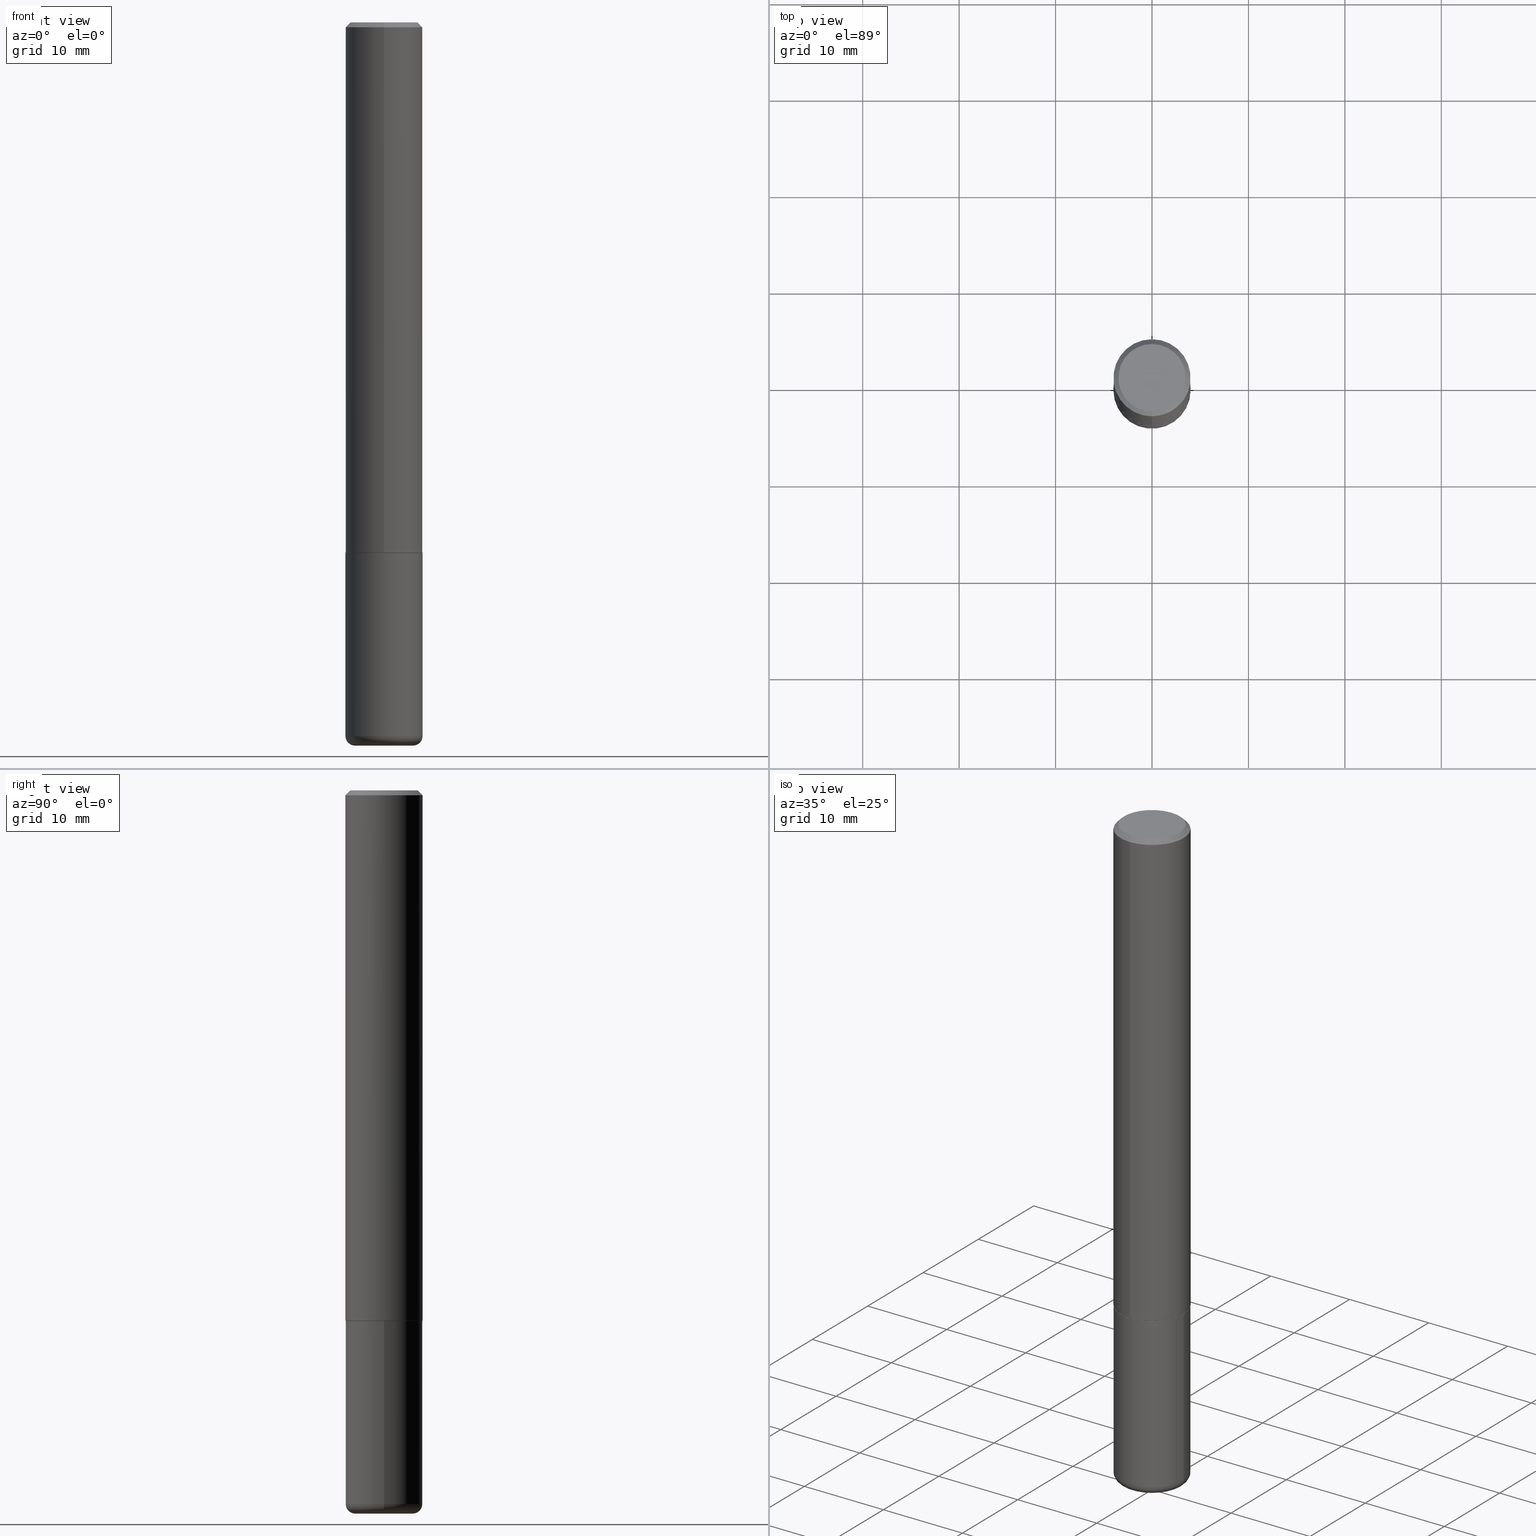
[diagram: canonical four-view strip — front | top / right | iso, engineering-drawing reading convention]
A machine part, canonical four-view strip (front | top / right | iso — engineering-drawing reading convention). The complete STEP part file that produces these views, byte-faithful:
ISO-10303-21;
HEADER;
FILE_DESCRIPTION (( 'STEP AP203' ),
    '1' );
FILE_NAME ('74356.STEP',
    '2024-03-06T15:08:46',
    ( '' ),
    ( '' ),
    'SwSTEP 2.0',
    'SolidWorks 2023',
    '' );
FILE_SCHEMA (( 'CONFIG_CONTROL_DESIGN' ));
ENDSEC;

DATA;
#1 = ADVANCED_BREP_SHAPE_REPRESENTATION ( '74356', ( #213, #67, #330 ), #46 ) ;
#2 = AXIS2_PLACEMENT_3D ( 'NONE', #162, #233, #283 ) ;
#3 = ADVANCED_FACE ( 'NONE', ( #200 ), #164, .T. ) ;
#4 = PERSON_AND_ORGANIZATION ( #378, #376 ) ;
#5 = CYLINDRICAL_SURFACE ( 'NONE', #399, 0.1575000000000001676 ) ;
#6 = APPROVAL ( #40, 'UNSPECIFIED' ) ;
#7 = ORIENTED_EDGE ( 'NONE', *, *, #335, .F. ) ;
#8 = LENGTH_MEASURE_WITH_UNIT ( LENGTH_MEASURE( 0.02539999999999999897 ), #332 );
#9 = PERSON_AND_ORGANIZATION_ROLE ( 'creator' ) ;
#10 = DIRECTION ( 'NONE',  ( 1.000000000000000000, -6.982962677686268288E-15, 0.000000000000000000 ) ) ;
#11 = EDGE_LOOP ( 'NONE', ( #315, #173, #359, #42 ) ) ;
#12 = PERSON_AND_ORGANIZATION ( #378, #376 ) ;
#13 = DIRECTION ( 'NONE',  ( -2.445468806185136597E-29, 3.491481338843145583E-15, 1.000000000000000000 ) ) ;
#14 = VERTEX_POINT ( 'NONE', #268 ) ;
#15 = AXIS2_PLACEMENT_3D ( 'NONE', #205, #235, #193 ) ;
#16 = DIRECTION ( 'NONE',  ( 1.000000000000000000, -6.982962677686265922E-15, 4.876176775795935232E-29 ) ) ;
#17 = ORIENTED_EDGE ( 'NONE', *, *, #243, .F. ) ;
#18 = FACE_OUTER_BOUND ( 'NONE', #150, .T. ) ;
#19 = ORIENTED_EDGE ( 'NONE', *, *, #216, .T. ) ;
#20 = EDGE_CURVE ( 'NONE', #115, #153, #245, .T. ) ;
#21 = CC_DESIGN_PERSON_AND_ORGANIZATION_ASSIGNMENT ( #171, #390, ( #62 ) ) ;
#22 = LOCAL_TIME ( 10, 8, 46.00000000000000000, #87 ) ;
#23 = AXIS2_PLACEMENT_3D ( 'NONE', #312, #380, #103 ) ;
#24 = ORIENTED_EDGE ( 'NONE', *, *, #96, .T. ) ;
#25 = DIRECTION ( 'NONE',  ( -2.444928043019069524E-29, 3.492255742475281487E-15, 1.000000000000000000 ) ) ;
#26 = AXIS2_PLACEMENT_3D ( 'NONE', #258, #397, #368 ) ;
#27 = EDGE_CURVE ( 'NONE', #293, #187, #278, .T. ) ;
#28 = CALENDAR_DATE ( 2024, 6, 3 ) ;
#29 = CARTESIAN_POINT ( 'NONE',  ( -0.1575000000000000011, 1.119104808822157801E-15, -7.747322767151475583E-30 ) ) ;
#30 = CYLINDRICAL_SURFACE ( 'NONE', #60, 0.1575000000000001676 ) ;
#31 =( CONVERSION_BASED_UNIT ( 'INCH', #8 ) LENGTH_UNIT ( ) NAMED_UNIT ( #219 ) );
#32 = DATE_AND_TIME ( #353, #372 ) ;
#33 = CARTESIAN_POINT ( 'NONE',  ( -1.099816621735536007E-15, -0.1575000000000078559, -2.164399999999999213 ) ) ;
#34 = ADVANCED_FACE ( 'NONE', ( #366 ), #79, .F. ) ;
#35 = ORIENTED_EDGE ( 'NONE', *, *, #90, .F. ) ;
#36 = LINE ( 'NONE', #367, #220 ) ;
#37 = FACE_OUTER_BOUND ( 'NONE', #120, .T. ) ;
#38 = EDGE_LOOP ( 'NONE', ( #48, #287, #57, #281 ) ) ;
#39 = PLANE ( 'NONE',  #83 ) ;
#40 = APPROVAL_STATUS ( 'not_yet_approved' ) ;
#41 = FACE_OUTER_BOUND ( 'NONE', #139, .T. ) ;
#42 = ORIENTED_EDGE ( 'NONE', *, *, #226, .F. ) ;
#43 = UNCERTAINTY_MEASURE_WITH_UNIT (LENGTH_MEASURE( 1.000000000000000082E-05 ), #31, 'distance_accuracy_value', 'NONE');
#44 = LINE ( 'NONE', #407, #244 ) ;
#45 = CARTESIAN_POINT ( 'NONE',  ( -1.011923454671300053E-15, -0.1374999999999997891, 6.809117321244884418E-16 ) ) ;
#46 =( GEOMETRIC_REPRESENTATION_CONTEXT ( 3 ) GLOBAL_UNCERTAINTY_ASSIGNED_CONTEXT ( ( #43 ) ) GLOBAL_UNIT_ASSIGNED_CONTEXT ( ( #31, #228, #136 ) ) REPRESENTATION_CONTEXT ( 'NONE', 'WORKASPACE' ) );
#47 = CARTESIAN_POINT ( 'NONE',  ( -0.1180999999999999966, -9.332930761652941905E-15, -2.913399999999999768 ) ) ;
#48 = ORIENTED_EDGE ( 'NONE', *, *, #114, .T. ) ;
#49 = APPLICATION_PROTOCOL_DEFINITION ( 'international standard', 'config_control_design', 1994, #227 ) ;
#50 = ADVANCED_FACE ( 'NONE', ( #51 ), #183, .F. ) ;
#51 = FACE_OUTER_BOUND ( 'NONE', #379, .T. ) ;
#52 = CC_DESIGN_DATE_AND_TIME_ASSIGNMENT ( #70, #282, ( #208 ) ) ;
#53 = LINE ( 'NONE', #91, #160 ) ;
#54 = ADVANCED_FACE ( 'NONE', ( #195 ), #5, .T. ) ;
#55 = AXIS2_PLACEMENT_3D ( 'NONE', #140, #260, #327 ) ;
#56 = CIRCLE ( 'NONE', #176, 0.1575000000000000011 ) ;
#57 = ORIENTED_EDGE ( 'NONE', *, *, #146, .F. ) ;
#58 = DIRECTION ( 'NONE',  ( 2.444928043019069804E-29, -3.492255742475281487E-15, -1.000000000000000000 ) ) ;
#59 = VERTEX_POINT ( 'NONE', #105 ) ;
#60 = AXIS2_PLACEMENT_3D ( 'NONE', #110, #333, #408 ) ;
#61 = CARTESIAN_POINT ( 'NONE',  ( 4.889856086038147210E-31, -6.984511484950574659E-17, -0.02000000000000003511 ) ) ;
#62 = PRODUCT_DEFINITION_FORMATION_WITH_SPECIFIED_SOURCE ( 'ANY', '', #412, .NOT_KNOWN. ) ;
#63 = ORIENTED_EDGE ( 'NONE', *, *, #89, .T. ) ;
#64 = LINE ( 'NONE', #223, #85 ) ;
#65 = PERSON_AND_ORGANIZATION_ROLE ( 'classification_officer' ) ;
#66 = CARTESIAN_POINT ( 'NONE',  ( 5.294247184353492784E-29, -7.562130584755974132E-15, -2.165399999999999991 ) ) ;
#67 = MANIFOLD_SOLID_BREP ( 'Body-Move/Copy2[2]', #331 ) ;
#68 = VERTEX_POINT ( 'NONE', #225 ) ;
#69 = CARTESIAN_POINT ( 'NONE',  ( 7.124628819939776708E-29, -1.017208173258561931E-14, -2.913399999999999768 ) ) ;
#70 = DATE_AND_TIME ( #28, #128 ) ;
#71 = DIRECTION ( 'NONE',  ( 2.444928043019069243E-29, -3.492255742475281487E-15, -1.000000000000000000 ) ) ;
#72 = EDGE_LOOP ( 'NONE', ( #355, #143, #239, #416 ) ) ;
#73 = DIRECTION ( 'NONE',  ( -2.444928043019069804E-29, 3.492255742475281487E-15, 1.000000000000000000 ) ) ;
#74 = AXIS2_PLACEMENT_3D ( 'NONE', #172, #165, #81 ) ;
#75 = DIRECTION ( 'NONE',  ( -2.444928043019069804E-29, 3.492255742475281487E-15, 1.000000000000000000 ) ) ;
#76 = DIRECTION ( 'NONE',  ( -2.444928043019069804E-29, 3.492255742475281487E-15, 1.000000000000000000 ) ) ;
#77 = CALENDAR_DATE ( 2024, 6, 3 ) ;
#78 = CARTESIAN_POINT ( 'NONE',  ( -1.092833659057847823E-15, -0.1565000000000075497, -2.165399999999999103 ) ) ;
#79 = PLANE ( 'NONE',  #210 ) ;
#80 = LINE ( 'NONE', #267, #129 ) ;
#81 = DIRECTION ( 'NONE',  ( 1.000000000000000000, -6.982962677686271444E-15, 4.883557194083114583E-29 ) ) ;
#82 = ORIENTED_EDGE ( 'NONE', *, *, #226, .T. ) ;
#83 = AXIS2_PLACEMENT_3D ( 'NONE', #396, #288, #144 ) ;
#84 = VERTEX_POINT ( 'NONE', #145 ) ;
#85 = VECTOR ( 'NONE', #191, 39.37007874015748143 ) ;
#86 = EDGE_CURVE ( 'NONE', #68, #326, #241, .T. ) ;
#87 = COORDINATED_UNIVERSAL_TIME_OFFSET ( 5, 0, .BEHIND. ) ;
#88 = DIRECTION ( 'NONE',  ( 2.438088387897960049E-29, -3.491481338843145188E-15, -1.000000000000000000 ) ) ;
#89 = EDGE_CURVE ( 'NONE', #153, #326, #217, .T. ) ;
#90 = EDGE_CURVE ( 'NONE', #14, #84, #56, .T. ) ;
#91 = CARTESIAN_POINT ( 'NONE',  ( -1.099816621735587875E-15, -0.1575000000000001676, 5.500302794398574170E-16 ) ) ;
#92 = CIRCLE ( 'NONE', #15, 0.1575000000000000289 ) ;
#93 = ADVANCED_FACE ( 'NONE', ( #109 ), #142, .T. ) ;
#94 = CIRCLE ( 'NONE', #26, 0.1565000000000000002 ) ;
#95 = DIRECTION ( 'NONE',  ( -2.444928043019069804E-29, 3.492255742475281487E-15, 1.000000000000000000 ) ) ;
#96 = EDGE_CURVE ( 'NONE', #153, #14, #391, .T. ) ;
#97 = ORIENTED_EDGE ( 'NONE', *, *, #27, .T. ) ;
#98 = CC_DESIGN_PERSON_AND_ORGANIZATION_ASSIGNMENT ( #12, #336, ( #412 ) ) ;
#99 = CIRCLE ( 'NONE', #294, 0.1575000000000000289 ) ;
#100 = CARTESIAN_POINT ( 'NONE',  ( 1.029986994958723788E-15, 0.1374999999999997891, -2.794585970562124091E-16 ) ) ;
#101 = APPROVAL_DATE_TIME ( #317, #392 ) ;
#102 = CIRCLE ( 'NONE', #306, 0.1575000000000003064 ) ;
#103 = DIRECTION ( 'NONE',  ( 1.000000000000000000, -6.982962677686273021E-15, 0.000000000000000000 ) ) ;
#104 = CARTESIAN_POINT ( 'NONE',  ( -0.1575000000000000289, -9.052976923763463288E-15, -2.913399999999999768 ) ) ;
#105 = CARTESIAN_POINT ( 'NONE',  ( 1.099816621735587480E-15, 0.1574999999999999456, -0.02000000000000058328 ) ) ;
#106 = ORIENTED_EDGE ( 'NONE', *, *, #96, .F. ) ;
#107 = DIRECTION ( 'NONE',  ( -4.851104656540962697E-15, -0.7071067811865497932, -0.7071067811865451302 ) ) ;
#108 = COORDINATED_UNIVERSAL_TIME_OFFSET ( 5, 0, .BEHIND. ) ;
#109 = FACE_OUTER_BOUND ( 'NONE', #170, .T. ) ;
#110 = CARTESIAN_POINT ( 'NONE',  ( 0.000000000000000000, 0.000000000000000000, 0.000000000000000000 ) ) ;
#111 = ORIENTED_EDGE ( 'NONE', *, *, #277, .T. ) ;
#112 = FACE_OUTER_BOUND ( 'NONE', #371, .T. ) ;
#113 = DIRECTION ( 'NONE',  ( -6.982962677686265922E-15, -1.000000000000000000, 3.492255742475281487E-15 ) ) ;
#114 = EDGE_CURVE ( 'NONE', #212, #259, #94, .T. ) ;
#115 = VERTEX_POINT ( 'NONE', #289 ) ;
#116 = FACE_OUTER_BOUND ( 'NONE', #190, .T. ) ;
#117 = DIRECTION ( 'NONE',  ( 1.000000000000000000, -6.982962677686261977E-15, 0.000000000000000000 ) ) ;
#118 = ORIENTED_EDGE ( 'NONE', *, *, #360, .F. ) ;
#119 = APPROVAL ( #357, 'UNSPECIFIED' ) ;
#120 = EDGE_LOOP ( 'NONE', ( #166, #404, #82, #266 ) ) ;
#121 = TOROIDAL_SURFACE ( 'NONE', #74, 0.1180999999999999966, 0.03940000000000005997 ) ;
#122 = APPROVAL_PERSON_ORGANIZATION ( #133, #6, #324 ) ;
#123 = AXIS2_PLACEMENT_3D ( 'NONE', #328, #299, #203 ) ;
#124 = EDGE_CURVE ( 'NONE', #212, #147, #388, .T. ) ;
#125 = DIRECTION ( 'NONE',  ( 1.000000000000000000, -6.982962677686261977E-15, 0.000000000000000000 ) ) ;
#126 = PRODUCT_DEFINITION ( 'UNKNOWN', '', #62, #395 ) ;
#127 = ORIENTED_EDGE ( 'NONE', *, *, #243, .T. ) ;
#128 = LOCAL_TIME ( 10, 8, 46.00000000000000000, #417 ) ;
#129 = VECTOR ( 'NONE', #238, 39.37007874015748143 ) ;
#130 = CARTESIAN_POINT ( 'NONE',  ( 1.119104808822185805E-15, 0.1574999999999927569, -2.164400000000000102 ) ) ;
#131 = CARTESIAN_POINT ( 'NONE',  ( 1.115552095143411136E-15, 0.1564999999999924507, -2.165400000000000436 ) ) ;
#132 = EDGE_LOOP ( 'NONE', ( #389, #309, #290, #111 ) ) ;
#133 = PERSON_AND_ORGANIZATION ( #378, #376 ) ;
#134 = TOROIDAL_SURFACE ( 'NONE', #174, 0.1180999999999999966, 0.03940000000000005997 ) ;
#135 = FACE_OUTER_BOUND ( 'NONE', #38, .T. ) ;
#136 =( NAMED_UNIT ( * ) SI_UNIT ( $, .STERADIAN. ) SOLID_ANGLE_UNIT ( ) );
#137 = CALENDAR_DATE ( 2024, 6, 3 ) ;
#138 = CARTESIAN_POINT ( 'NONE',  ( 0.000000000000000000, 0.000000000000000000, 0.000000000000000000 ) ) ;
#139 = EDGE_LOOP ( 'NONE', ( #127, #284, #302, #409 ) ) ;
#140 = CARTESIAN_POINT ( 'NONE',  ( 5.294247184353492784E-29, -7.562130584755974132E-15, -2.165399999999999991 ) ) ;
#141 = DATE_TIME_ROLE ( 'creation_date' ) ;
#142 = CYLINDRICAL_SURFACE ( 'NONE', #270, 0.1575000000000000011 ) ;
#143 = ORIENTED_EDGE ( 'NONE', *, *, #413, .T. ) ;
#144 = DIRECTION ( 'NONE',  ( -1.000000000000000000, 6.982962677686265922E-15, -4.876176775795935793E-29 ) ) ;
#145 = CARTESIAN_POINT ( 'NONE',  ( 0.1575000000000000011, -8.660270312866534114E-15, -2.165399999999999991 ) ) ;
#146 = EDGE_CURVE ( 'NONE', #147, #248, #297, .T. ) ;
#147 = VERTEX_POINT ( 'NONE', #33 ) ;
#148 = CARTESIAN_POINT ( 'NONE',  ( -1.080528434649015779E-15, -0.1575000000000000844, -0.01999999999999948347 ) ) ;
#149 = DIRECTION ( 'NONE',  ( -2.445468806185136597E-29, 3.491481338843145583E-15, 1.000000000000000000 ) ) ;
#150 = EDGE_LOOP ( 'NONE', ( #17, #398 ) ) ;
#151 = CARTESIAN_POINT ( 'NONE',  ( 7.124628819939776708E-29, -1.017208173258561931E-14, -2.913399999999999768 ) ) ;
#152 = PRODUCT_RELATED_PRODUCT_CATEGORY ( 'detail', '', ( #412 ) ) ;
#153 = VERTEX_POINT ( 'NONE', #104 ) ;
#154 = CC_DESIGN_SECURITY_CLASSIFICATION ( #208, ( #62 ) ) ;
#155 = CONICAL_SURFACE ( 'NONE', #184, 0.1565000000000000002, 0.7853981633975678500 ) ;
#156 = CC_DESIGN_DATE_AND_TIME_ASSIGNMENT ( #383, #141, ( #126 ) ) ;
#157 = EDGE_CURVE ( 'NONE', #115, #68, #361, .T. ) ;
#158 = ADVANCED_FACE ( 'NONE', ( #41 ), #121, .T. ) ;
#159 = CC_DESIGN_APPROVAL ( #6, ( #208 ) ) ;
#160 = VECTOR ( 'NONE', #25, 39.37007874015748143 ) ;
#161 = CARTESIAN_POINT ( 'NONE',  ( 5.291802256310474180E-29, -7.558638329013498276E-15, -2.164399999999999658 ) ) ;
#162 = CARTESIAN_POINT ( 'NONE',  ( 5.291802256310474180E-29, -7.558638329013498276E-15, -2.164399999999999658 ) ) ;
#163 = ORIENTED_EDGE ( 'NONE', *, *, #89, .F. ) ;
#164 = CONICAL_SURFACE ( 'NONE', #410, 0.1575000000000000289, 0.7853981633974481680 ) ;
#165 = DIRECTION ( 'NONE',  ( -2.445468806185136597E-29, 3.491481338843145583E-15, 1.000000000000000000 ) ) ;
#166 = ORIENTED_EDGE ( 'NONE', *, *, #303, .F. ) ;
#167 = ADVANCED_FACE ( 'NONE', ( #262 ), #405, .T. ) ;
#168 = DIRECTION ( 'NONE',  ( -6.982962677686265133E-15, -1.000000000000000000, 3.492255742475281487E-15 ) ) ;
#169 = ADVANCED_FACE ( 'NONE', ( #135 ), #155, .T. ) ;
#170 = EDGE_LOOP ( 'NONE', ( #106, #63, #406, #35 ) ) ;
#171 = PERSON_AND_ORGANIZATION ( #378, #376 ) ;
#172 = CARTESIAN_POINT ( 'NONE',  ( 7.124628819939776708E-29, -1.017208173258561931E-14, -2.913399999999999768 ) ) ;
#173 = ORIENTED_EDGE ( 'NONE', *, *, #303, .T. ) ;
#174 = AXIS2_PLACEMENT_3D ( 'NONE', #151, #401, #316 ) ;
#175 = DIRECTION ( 'NONE',  ( 5.024295867788662713E-15, 0.7071067811866345032, 0.7071067811864605313 ) ) ;
#176 = AXIS2_PLACEMENT_3D ( 'NONE', #318, #177, #10 ) ;
#177 = DIRECTION ( 'NONE',  ( -2.445468806185136597E-29, 3.491481338843145583E-15, 1.000000000000000000 ) ) ;
#178 = CIRCLE ( 'NONE', #308, 0.1565000000000000002 ) ;
#179 = EDGE_LOOP ( 'NONE', ( #181, #7 ) ) ;
#180 = CARTESIAN_POINT ( 'NONE',  ( 0.1575000000000000289, -1.127189835432120758E-14, -2.913399999999999768 ) ) ;
#181 = ORIENTED_EDGE ( 'NONE', *, *, #114, .F. ) ;
#182 = PERSON_AND_ORGANIZATION ( #378, #376 ) ;
#183 = PLANE ( 'NONE',  #305 ) ;
#184 = AXIS2_PLACEMENT_3D ( 'NONE', #66, #73, #286 ) ;
#185 = CIRCLE ( 'NONE', #23, 0.1180999999999999966 ) ;
#186 = EDGE_CURVE ( 'NONE', #293, #59, #402, .T. ) ;
#187 = VERTEX_POINT ( 'NONE', #45 ) ;
#188 = ORIENTED_EDGE ( 'NONE', *, *, #197, .F. ) ;
#189 = AXIS2_PLACEMENT_3D ( 'NONE', #344, #58, #311 ) ;
#190 = EDGE_LOOP ( 'NONE', ( #369, #207, #196, #163 ) ) ;
#191 = DIRECTION ( 'NONE',  ( -2.444928043019069524E-29, 3.492255742475281487E-15, 1.000000000000000000 ) ) ;
#192 = DIRECTION ( 'NONE',  ( 6.982962677686265922E-15, 1.000000000000000000, -3.492255742475281487E-15 ) ) ;
#193 = DIRECTION ( 'NONE',  ( -6.982962677686264344E-15, -1.000000000000000000, 3.496114991891764787E-15 ) ) ;
#194 = PERSON_AND_ORGANIZATION ( #378, #376 ) ;
#195 = FACE_OUTER_BOUND ( 'NONE', #11, .T. ) ;
#196 = ORIENTED_EDGE ( 'NONE', *, *, #86, .T. ) ;
#197 = EDGE_CURVE ( 'NONE', #84, #14, #261, .T. ) ;
#198 = ADVANCED_FACE ( 'NONE', ( #37 ), #30, .T. ) ;
#199 = DIRECTION ( 'NONE',  ( -2.445468806185136597E-29, 3.491481338843145583E-15, 1.000000000000000000 ) ) ;
#200 = FACE_OUTER_BOUND ( 'NONE', #72, .T. ) ;
#201 = DIRECTION ( 'NONE',  ( 1.000000000000000000, 0.000000000000000000, 0.000000000000000000 ) ) ;
#202 = PERSON_AND_ORGANIZATION ( #378, #376 ) ;
#203 = DIRECTION ( 'NONE',  ( 1.000000000000000000, -6.982962677686267499E-15, 0.000000000000000000 ) ) ;
#204 = ORIENTED_EDGE ( 'NONE', *, *, #272, .F. ) ;
#205 = CARTESIAN_POINT ( 'NONE',  ( 4.889856086038147210E-31, -6.984511484950574659E-17, -0.02000000000000003511 ) ) ;
#206 = DIRECTION ( 'NONE',  ( 4.937700262164546464E-15, 0.7071067811865447972, -0.7071067811865500152 ) ) ;
#207 = ORIENTED_EDGE ( 'NONE', *, *, #157, .T. ) ;
#208 = SECURITY_CLASSIFICATION ( '', '', #350 ) ;
#209 = DIRECTION ( 'NONE',  ( -2.444928043019069804E-29, 3.492255742475281487E-15, 1.000000000000000000 ) ) ;
#210 = AXIS2_PLACEMENT_3D ( 'NONE', #337, #88, #215 ) ;
#211 = AXIS2_PLACEMENT_3D ( 'NONE', #351, #199, #321 ) ;
#212 = VERTEX_POINT ( 'NONE', #365 ) ;
#213 = MANIFOLD_SOLID_BREP ( 'Body-Move/Copy2[1]', #375 ) ;
#214 = APPROVAL_ROLE ( '' ) ;
#215 = DIRECTION ( 'NONE',  ( -1.000000000000000000, 6.982962677686265922E-15, -4.876176775795935793E-29 ) ) ;
#216 = EDGE_CURVE ( 'NONE', #187, #293, #273, .T. ) ;
#217 = CIRCLE ( 'NONE', #347, 0.1575000000000000011 ) ;
#218 = FACE_OUTER_BOUND ( 'NONE', #132, .T. ) ;
#219 = DIMENSIONAL_EXPONENTS ( 1.000000000000000000, 0.000000000000000000, 0.000000000000000000, 0.000000000000000000, 0.000000000000000000, 0.000000000000000000, 0.000000000000000000 ) ;
#220 = VECTOR ( 'NONE', #107, 39.37007874015748854 ) ;
#221 = ORIENTED_EDGE ( 'NONE', *, *, #352, .F. ) ;
#222 = LOCAL_TIME ( 10, 8, 46.00000000000000000, #108 ) ;
#223 = CARTESIAN_POINT ( 'NONE',  ( 1.119104808822158787E-15, 0.1575000000000001676, -5.500302794398574170E-16 ) ) ;
#224 = PERSON_AND_ORGANIZATION ( #378, #376 ) ;
#225 = CARTESIAN_POINT ( 'NONE',  ( 0.1180999999999999966, -1.113433398957078679E-14, -2.952799999999999869 ) ) ;
#226 = EDGE_CURVE ( 'NONE', #147, #385, #53, .T. ) ;
#227 = APPLICATION_CONTEXT ( 'configuration controlled 3d designs of mechanical parts and assemblies' ) ;
#228 =( NAMED_UNIT ( * ) PLANE_ANGLE_UNIT ( ) SI_UNIT ( $, .RADIAN. ) );
#229 = DIRECTION ( 'NONE',  ( -2.445468806185136877E-29, 3.491481338843145188E-15, 1.000000000000000000 ) ) ;
#230 = CARTESIAN_POINT ( 'NONE',  ( -4.907620139431751550E-45, 7.009885081384458012E-31, 2.007265675341379917E-16 ) ) ;
#231 = CARTESIAN_POINT ( 'NONE',  ( 0.000000000000000000, 0.000000000000000000, 0.000000000000000000 ) ) ;
#232 = AXIS2_PLACEMENT_3D ( 'NONE', #325, #418, #265 ) ;
#233 = DIRECTION ( 'NONE',  ( -2.444928043019069804E-29, 3.492255742475281487E-15, 1.000000000000000000 ) ) ;
#234 = CARTESIAN_POINT ( 'NONE',  ( 4.889856086038147210E-31, -6.984511484950574659E-17, -0.02000000000000003511 ) ) ;
#235 = DIRECTION ( 'NONE',  ( -2.444928043019069804E-29, 3.492255742475281487E-15, 1.000000000000000000 ) ) ;
#236 = DIRECTION ( 'NONE',  ( -2.445468806185136597E-29, 3.491481338843145583E-15, 1.000000000000000000 ) ) ;
#237 = ORIENTED_EDGE ( 'NONE', *, *, #269, .T. ) ;
#238 = DIRECTION ( 'NONE',  ( -2.445468806185136877E-29, 3.491481338843145188E-15, 1.000000000000000000 ) ) ;
#239 = ORIENTED_EDGE ( 'NONE', *, *, #394, .T. ) ;
#240 = PLANE ( 'NONE',  #55 ) ;
#241 = CIRCLE ( 'NONE', #123, 0.03940000000000005997 ) ;
#242 = ORIENTED_EDGE ( 'NONE', *, *, #335, .T. ) ;
#243 = EDGE_CURVE ( 'NONE', #68, #115, #185, .T. ) ;
#244 = VECTOR ( 'NONE', #175, 39.37007874015748143 ) ;
#245 = CIRCLE ( 'NONE', #384, 0.03940000000000005997 ) ;
#246 = CC_DESIGN_APPROVAL ( #392, ( #126 ) ) ;
#247 = DIRECTION ( 'NONE',  ( -2.444928043019069804E-29, 3.492255742475281487E-15, 1.000000000000000000 ) ) ;
#248 = VERTEX_POINT ( 'NONE', #130 ) ;
#249 = AXIS2_PLACEMENT_3D ( 'NONE', #69, #276, #125 ) ;
#250 = COORDINATED_UNIVERSAL_TIME_OFFSET ( 5, 0, .BEHIND. ) ;
#251 = CARTESIAN_POINT ( 'NONE',  ( 1.099816621735587480E-15, 0.1574999999999999456, -0.02000000000000058328 ) ) ;
#252 = CC_DESIGN_PERSON_AND_ORGANIZATION_ASSIGNMENT ( #4, #9, ( #126 ) ) ;
#253 = APPROVAL_DATE_TIME ( #363, #119 ) ;
#254 = CARTESIAN_POINT ( 'NONE',  ( 7.124628819939776708E-29, -1.017208173258561931E-14, -2.913399999999999768 ) ) ;
#255 = DIRECTION ( 'NONE',  ( 6.982962677686264344E-15, 1.000000000000000000, -3.496114991891764787E-15 ) ) ;
#256 = DIRECTION ( 'NONE',  ( -6.982962677686265922E-15, -1.000000000000000000, 3.491179544618866730E-15 ) ) ;
#257 = APPROVAL_ROLE ( '' ) ;
#258 = CARTESIAN_POINT ( 'NONE',  ( 5.294247184353492784E-29, -7.562130584755974132E-15, -2.165399999999999991 ) ) ;
#259 = VERTEX_POINT ( 'NONE', #131 ) ;
#260 = DIRECTION ( 'NONE',  ( -2.444928043019069243E-29, 3.492255742475281487E-15, 1.000000000000000000 ) ) ;
#261 = CIRCLE ( 'NONE', #211, 0.1575000000000000011 ) ;
#262 = FACE_OUTER_BOUND ( 'NONE', #264, .T. ) ;
#263 = DIRECTION ( 'NONE',  ( -2.444928043019069804E-29, 3.492255742475281487E-15, 1.000000000000000000 ) ) ;
#264 = EDGE_LOOP ( 'NONE', ( #237, #24, #188, #221 ) ) ;
#265 = DIRECTION ( 'NONE',  ( 1.000000000000000000, -6.982962677686273021E-15, 0.000000000000000000 ) ) ;
#266 = ORIENTED_EDGE ( 'NONE', *, *, #277, .F. ) ;
#267 = CARTESIAN_POINT ( 'NONE',  ( 0.1575000000000000011, -1.099816621735586889E-15, 7.679978421878598033E-30 ) ) ;
#268 = CARTESIAN_POINT ( 'NONE',  ( -0.1575000000000000011, -7.747162903036124976E-15, -2.165399999999999991 ) ) ;
#269 = EDGE_CURVE ( 'NONE', #326, #153, #279, .T. ) ;
#270 = AXIS2_PLACEMENT_3D ( 'NONE', #138, #236, #16 ) ;
#271 = CC_DESIGN_PERSON_AND_ORGANIZATION_ASSIGNMENT ( #194, #65, ( #208 ) ) ;
#272 = EDGE_CURVE ( 'NONE', #248, #147, #102, .T. ) ;
#273 = CIRCLE ( 'NONE', #400, 0.1374999999999997891 ) ;
#274 = CC_DESIGN_APPROVAL ( #119, ( #62 ) ) ;
#275 = PRODUCT_DEFINITION_SHAPE ( 'NONE', 'NONE',  #126 ) ;
#276 = DIRECTION ( 'NONE',  ( -2.445468806185136597E-29, 3.491481338843145583E-15, 1.000000000000000000 ) ) ;
#277 = EDGE_CURVE ( 'NONE', #59, #385, #99, .T. ) ;
#278 = CIRCLE ( 'NONE', #295, 0.1374999999999997891 ) ;
#279 = CIRCLE ( 'NONE', #249, 0.1575000000000000011 ) ;
#280 = ORIENTED_EDGE ( 'NONE', *, *, #90, .T. ) ;
#281 = ORIENTED_EDGE ( 'NONE', *, *, #124, .F. ) ;
#282 = DATE_TIME_ROLE ( 'classification_date' ) ;
#283 = DIRECTION ( 'NONE',  ( -6.982962677686265133E-15, -1.000000000000000000, 3.469013325287946588E-15 ) ) ;
#284 = ORIENTED_EDGE ( 'NONE', *, *, #20, .T. ) ;
#285 = APPROVAL_DATE_TIME ( #32, #6 ) ;
#286 = DIRECTION ( 'NONE',  ( -6.982962677686265922E-15, -1.000000000000000000, 3.491179544618866730E-15 ) ) ;
#287 = ORIENTED_EDGE ( 'NONE', *, *, #360, .T. ) ;
#288 = DIRECTION ( 'NONE',  ( 2.438088387897960049E-29, -3.491481338843145188E-15, -1.000000000000000000 ) ) ;
#289 = CARTESIAN_POINT ( 'NONE',  ( -0.1180999999999999966, -9.261736025083411415E-15, -2.952799999999999869 ) ) ;
#290 = ORIENTED_EDGE ( 'NONE', *, *, #186, .T. ) ;
#291 = CALENDAR_DATE ( 2024, 6, 3 ) ;
#292 = DIRECTION ( 'NONE',  ( 1.000000000000000000, -6.982962677686265922E-15, 4.876176775795935232E-29 ) ) ;
#293 = VERTEX_POINT ( 'NONE', #100 ) ;
#294 = AXIS2_PLACEMENT_3D ( 'NONE', #61, #95, #415 ) ;
#295 = AXIS2_PLACEMENT_3D ( 'NONE', #230, #75, #322 ) ;
#296 = CARTESIAN_POINT ( 'NONE',  ( 5.294247184353492784E-29, -7.562130584755974132E-15, -2.165399999999999991 ) ) ;
#297 = CIRCLE ( 'NONE', #2, 0.1575000000000003064 ) ;
#298 = ADVANCED_FACE ( 'NONE', ( #218 ), #373, .T. ) ;
#299 = DIRECTION ( 'NONE',  ( -6.982962677686266711E-15, -1.000000000000000000, 3.491481338843145583E-15 ) ) ;
#300 = DIRECTION ( 'NONE',  ( 7.105427357601001859E-15, 1.000000000000000000, -3.491481338843145583E-15 ) ) ;
#301 = CARTESIAN_POINT ( 'NONE',  ( 5.294247184353492784E-29, -7.562130584755974132E-15, -2.165399999999999991 ) ) ;
#302 = ORIENTED_EDGE ( 'NONE', *, *, #269, .F. ) ;
#303 = EDGE_CURVE ( 'NONE', #248, #59, #64, .T. ) ;
#304 = APPROVAL_STATUS ( 'not_yet_approved' ) ;
#305 = AXIS2_PLACEMENT_3D ( 'NONE', #374, #71, #192 ) ;
#306 = AXIS2_PLACEMENT_3D ( 'NONE', #161, #247, #381 ) ;
#307 = AXIS2_PLACEMENT_3D ( 'NONE', #354, #13, #292 ) ;
#308 = AXIS2_PLACEMENT_3D ( 'NONE', #301, #76, #370 ) ;
#309 = ORIENTED_EDGE ( 'NONE', *, *, #27, .F. ) ;
#310 = ADVANCED_FACE ( 'NONE', ( #320 ), #240, .F. ) ;
#311 = DIRECTION ( 'NONE',  ( 6.982962677686264344E-15, 1.000000000000000000, -3.496114991891764787E-15 ) ) ;
#312 = CARTESIAN_POINT ( 'NONE',  ( 7.220980290903470182E-29, -1.030964609733603853E-14, -2.952799999999999869 ) ) ;
#313 = PERSON_AND_ORGANIZATION_ROLE ( 'creator' ) ;
#314 = DIRECTION ( 'NONE',  ( -2.444928043019069804E-29, 3.492255742475281487E-15, 1.000000000000000000 ) ) ;
#315 = ORIENTED_EDGE ( 'NONE', *, *, #146, .T. ) ;
#316 = DIRECTION ( 'NONE',  ( 1.000000000000000000, -6.982962677686271444E-15, 4.883557194083114583E-29 ) ) ;
#317 = DATE_AND_TIME ( #77, #22 ) ;
#318 = CARTESIAN_POINT ( 'NONE',  ( 5.295418152913294345E-29, -7.560453691130947423E-15, -2.165399999999999991 ) ) ;
#319 = ORIENTED_EDGE ( 'NONE', *, *, #197, .T. ) ;
#320 = FACE_OUTER_BOUND ( 'NONE', #179, .T. ) ;
#321 = DIRECTION ( 'NONE',  ( 1.000000000000000000, -6.982962677686268288E-15, 0.000000000000000000 ) ) ;
#322 = DIRECTION ( 'NONE',  ( -6.982962677686265922E-15, -1.000000000000000000, 3.492255742475281487E-15 ) ) ;
#323 = APPLICATION_PROTOCOL_DEFINITION ( 'international standard', 'config_control_design', 1994, #338 ) ;
#324 = APPROVAL_ROLE ( '' ) ;
#325 = CARTESIAN_POINT ( 'NONE',  ( 7.220980290903470182E-29, -1.030964609733603853E-14, -2.952799999999999869 ) ) ;
#326 = VERTEX_POINT ( 'NONE', #180 ) ;
#327 = DIRECTION ( 'NONE',  ( -6.982962677686265922E-15, -1.000000000000000000, 3.492255742475281487E-15 ) ) ;
#328 = CARTESIAN_POINT ( 'NONE',  ( 0.1180999999999999966, -1.099676962482036915E-14, -2.913399999999999768 ) ) ;
#329 = DIRECTION ( 'NONE',  ( 2.444928043019069804E-29, -3.492255742475281487E-15, -1.000000000000000000 ) ) ;
#330 = AXIS2_PLACEMENT_3D ( 'NONE', #231, #362, #201 ) ;
#331 = CLOSED_SHELL ( 'NONE', ( #169, #54, #3, #298, #198, #377, #310, #50 ) ) ;
#332 =( LENGTH_UNIT ( ) NAMED_UNIT ( * ) SI_UNIT ( $, .METRE. ) );
#333 = DIRECTION ( 'NONE',  ( -2.444928043019069804E-29, 3.492255742475281487E-15, 1.000000000000000000 ) ) ;
#334 = EDGE_LOOP ( 'NONE', ( #319, #280 ) ) ;
#335 = EDGE_CURVE ( 'NONE', #259, #212, #178, .T. ) ;
#336 = PERSON_AND_ORGANIZATION_ROLE ( 'design_owner' ) ;
#337 = CARTESIAN_POINT ( 'NONE',  ( 5.295418152913294345E-29, -7.560453691130947423E-15, -2.165399999999999991 ) ) ;
#338 = APPLICATION_CONTEXT ( 'configuration controlled 3d designs of mechanical parts and assemblies' ) ;
#339 = AXIS2_PLACEMENT_3D ( 'NONE', #296, #209, #256 ) ;
#340 = SHAPE_DEFINITION_REPRESENTATION ( #275, #1 ) ;
#341 = VECTOR ( 'NONE', #229, 39.37007874015748143 ) ;
#342 = ADVANCED_FACE ( 'NONE', ( #18 ), #39, .T. ) ;
#343 = CC_DESIGN_PERSON_AND_ORGANIZATION_ASSIGNMENT ( #202, #313, ( #62 ) ) ;
#344 = CARTESIAN_POINT ( 'NONE',  ( 4.889856086038147210E-31, -6.984511484950574659E-17, -0.02000000000000003511 ) ) ;
#345 = ADVANCED_FACE ( 'NONE', ( #116 ), #134, .T. ) ;
#346 = CONICAL_SURFACE ( 'NONE', #339, 0.1565000000000000002, 0.7853981633975678500 ) ;
#347 = AXIS2_PLACEMENT_3D ( 'NONE', #254, #149, #117 ) ;
#348 = ORIENTED_EDGE ( 'NONE', *, *, #124, .T. ) ;
#349 = APPROVAL_PERSON_ORGANIZATION ( #182, #392, #214 ) ;
#350 = SECURITY_CLASSIFICATION_LEVEL ( 'unclassified' ) ;
#351 = CARTESIAN_POINT ( 'NONE',  ( 5.295418152913294345E-29, -7.560453691130947423E-15, -2.165399999999999991 ) ) ;
#352 = EDGE_CURVE ( 'NONE', #326, #84, #80, .T. ) ;
#353 = CALENDAR_DATE ( 2024, 6, 3 ) ;
#354 = CARTESIAN_POINT ( 'NONE',  ( 0.000000000000000000, 0.000000000000000000, 0.000000000000000000 ) ) ;
#355 = ORIENTED_EDGE ( 'NONE', *, *, #216, .F. ) ;
#356 = MECHANICAL_CONTEXT ( 'NONE', #338, 'mechanical' ) ;
#357 = APPROVAL_STATUS ( 'not_yet_approved' ) ;
#358 = DIRECTION ( 'NONE',  ( -4.937700262165138110E-15, -0.7071067811866296182, 0.7071067811864654162 ) ) ;
#359 = ORIENTED_EDGE ( 'NONE', *, *, #394, .F. ) ;
#360 = EDGE_CURVE ( 'NONE', #259, #248, #44, .T. ) ;
#361 = CIRCLE ( 'NONE', #232, 0.1180999999999999966 ) ;
#362 = DIRECTION ( 'NONE',  ( 0.000000000000000000, 0.000000000000000000, 1.000000000000000000 ) ) ;
#363 = DATE_AND_TIME ( #291, #222 ) ;
#364 = CARTESIAN_POINT ( 'NONE',  ( 0.000000000000000000, 0.000000000000000000, 0.000000000000000000 ) ) ;
#365 = CARTESIAN_POINT ( 'NONE',  ( -1.092833659057847823E-15, -0.1565000000000075497, -2.165399999999999103 ) ) ;
#366 = FACE_OUTER_BOUND ( 'NONE', #334, .T. ) ;
#367 = CARTESIAN_POINT ( 'NONE',  ( -1.080528434649015779E-15, -0.1575000000000000844, -0.01999999999999948347 ) ) ;
#368 = DIRECTION ( 'NONE',  ( -6.982962677686265922E-15, -1.000000000000000000, 3.491179544618866730E-15 ) ) ;
#369 = ORIENTED_EDGE ( 'NONE', *, *, #20, .F. ) ;
#370 = DIRECTION ( 'NONE',  ( -6.982962677686265922E-15, -1.000000000000000000, 3.491179544618866730E-15 ) ) ;
#371 = EDGE_LOOP ( 'NONE', ( #118, #242, #348, #204 ) ) ;
#372 = LOCAL_TIME ( 10, 8, 46.00000000000000000, #250 ) ;
#373 = CONICAL_SURFACE ( 'NONE', #189, 0.1575000000000000289, 0.7853981633974481680 ) ;
#374 = CARTESIAN_POINT ( 'NONE',  ( 9.601573681818600950E-16, 0.1374999999999997891, -3.798218808232814543E-16 ) ) ;
#375 = CLOSED_SHELL ( 'NONE', ( #167, #158, #34, #93, #345, #342 ) ) ;
#376 = ORGANIZATION ( 'UNSPECIFIED', 'UNSPECIFIED', '' ) ;
#377 = ADVANCED_FACE ( 'NONE', ( #112 ), #346, .T. ) ;
#378 = PERSON ( 'UNSPECIFIED', 'UNSPECIFIED', 'UNSPECIFIED', ('UNSPECIFIED'), ('UNSPECIFIED'), ('UNSPECIFIED') ) ;
#379 = EDGE_LOOP ( 'NONE', ( #97, #19 ) ) ;
#380 = DIRECTION ( 'NONE',  ( -2.445468806185136597E-29, 3.491481338843145583E-15, 1.000000000000000000 ) ) ;
#381 = DIRECTION ( 'NONE',  ( -6.982962677686265133E-15, -1.000000000000000000, 3.469013325287946588E-15 ) ) ;
#382 = LOCAL_TIME ( 10, 8, 46.00000000000000000, #387 ) ;
#383 = DATE_AND_TIME ( #137, #382 ) ;
#384 = AXIS2_PLACEMENT_3D ( 'NONE', #47, #300, #393 ) ;
#385 = VERTEX_POINT ( 'NONE', #148 ) ;
#386 = VECTOR ( 'NONE', #206, 39.37007874015748854 ) ;
#387 = COORDINATED_UNIVERSAL_TIME_OFFSET ( 5, 0, .BEHIND. ) ;
#388 = LINE ( 'NONE', #78, #414 ) ;
#389 = ORIENTED_EDGE ( 'NONE', *, *, #413, .F. ) ;
#390 = PERSON_AND_ORGANIZATION_ROLE ( 'design_supplier' ) ;
#391 = LINE ( 'NONE', #29, #341 ) ;
#392 = APPROVAL ( #304, 'UNSPECIFIED' ) ;
#393 = DIRECTION ( 'NONE',  ( -1.000000000000000000, 7.105427357601014480E-15, 0.000000000000000000 ) ) ;
#394 = EDGE_CURVE ( 'NONE', #385, #59, #92, .T. ) ;
#395 = DESIGN_CONTEXT ( 'detailed design', #227, 'design' ) ;
#396 = CARTESIAN_POINT ( 'NONE',  ( 7.220980290903470182E-29, -1.030964609733603853E-14, -2.952799999999999869 ) ) ;
#397 = DIRECTION ( 'NONE',  ( -2.444928043019069804E-29, 3.492255742475281487E-15, 1.000000000000000000 ) ) ;
#398 = ORIENTED_EDGE ( 'NONE', *, *, #157, .F. ) ;
#399 = AXIS2_PLACEMENT_3D ( 'NONE', #364, #314, #168 ) ;
#400 = AXIS2_PLACEMENT_3D ( 'NONE', #403, #263, #113 ) ;
#401 = DIRECTION ( 'NONE',  ( -2.445468806185136597E-29, 3.491481338843145583E-15, 1.000000000000000000 ) ) ;
#402 = LINE ( 'NONE', #251, #386 ) ;
#403 = CARTESIAN_POINT ( 'NONE',  ( -4.907620139431751550E-45, 7.009885081384458012E-31, 2.007265675341379917E-16 ) ) ;
#404 = ORIENTED_EDGE ( 'NONE', *, *, #272, .T. ) ;
#405 = CYLINDRICAL_SURFACE ( 'NONE', #307, 0.1575000000000000011 ) ;
#406 = ORIENTED_EDGE ( 'NONE', *, *, #352, .T. ) ;
#407 = CARTESIAN_POINT ( 'NONE',  ( 1.111999381464609449E-15, 0.1564999999999924507, -2.165400000000000436 ) ) ;
#408 = DIRECTION ( 'NONE',  ( -6.982962677686265133E-15, -1.000000000000000000, 3.492255742475281487E-15 ) ) ;
#409 = ORIENTED_EDGE ( 'NONE', *, *, #86, .F. ) ;
#410 = AXIS2_PLACEMENT_3D ( 'NONE', #234, #329, #255 ) ;
#411 = APPROVAL_PERSON_ORGANIZATION ( #224, #119, #257 ) ;
#412 = PRODUCT ( '74356', '74356', '', ( #356 ) ) ;
#413 = EDGE_CURVE ( 'NONE', #187, #385, #36, .T. ) ;
#414 = VECTOR ( 'NONE', #358, 39.37007874015748143 ) ;
#415 = DIRECTION ( 'NONE',  ( -6.982962677686264344E-15, -1.000000000000000000, 3.496114991891764787E-15 ) ) ;
#416 = ORIENTED_EDGE ( 'NONE', *, *, #186, .F. ) ;
#417 = COORDINATED_UNIVERSAL_TIME_OFFSET ( 5, 0, .BEHIND. ) ;
#418 = DIRECTION ( 'NONE',  ( -2.445468806185136597E-29, 3.491481338843145583E-15, 1.000000000000000000 ) ) ;
ENDSEC;
END-ISO-10303-21;
